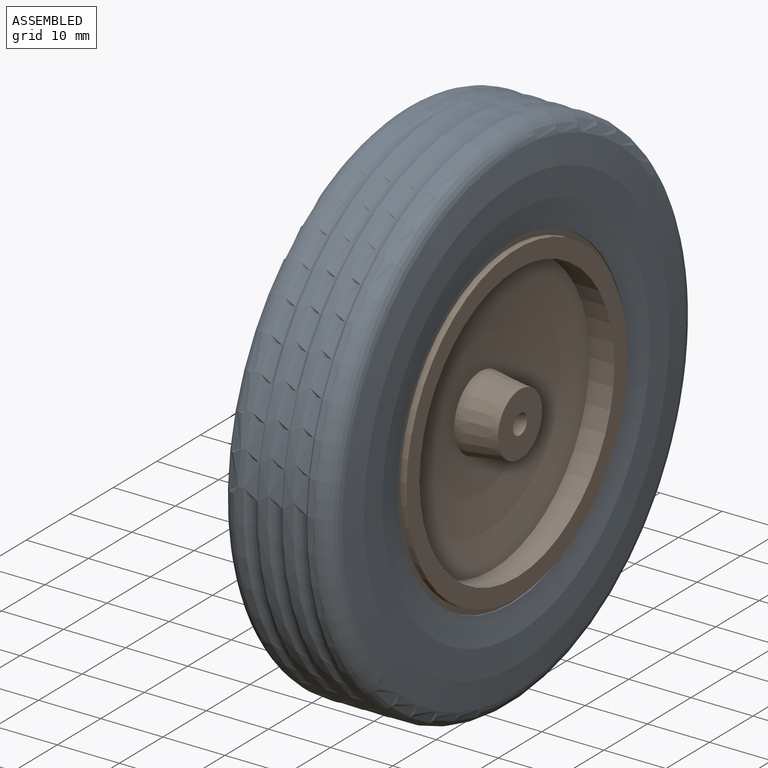
[diagram: assembled view]
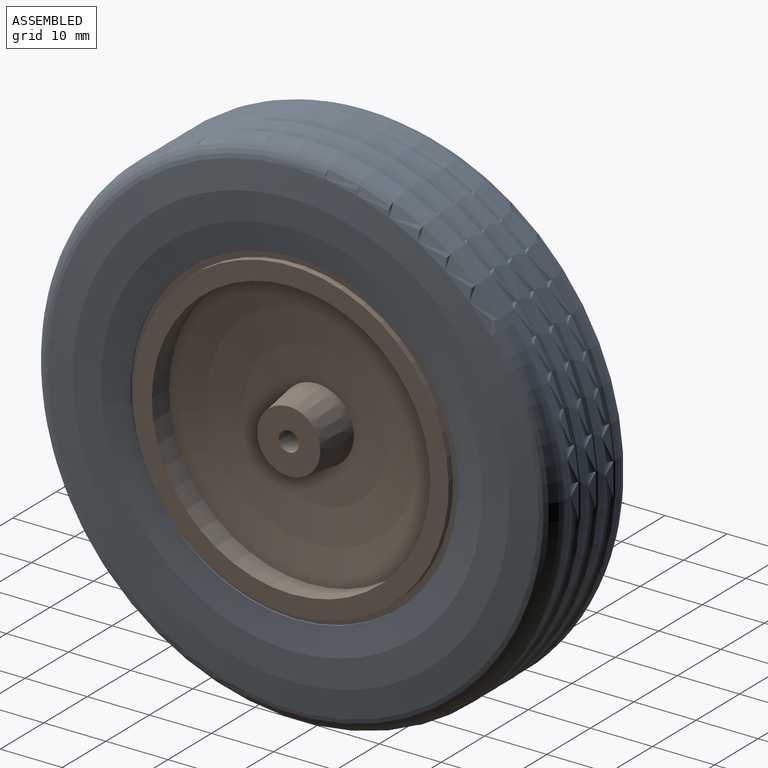
[diagram: assembled view, second angle]
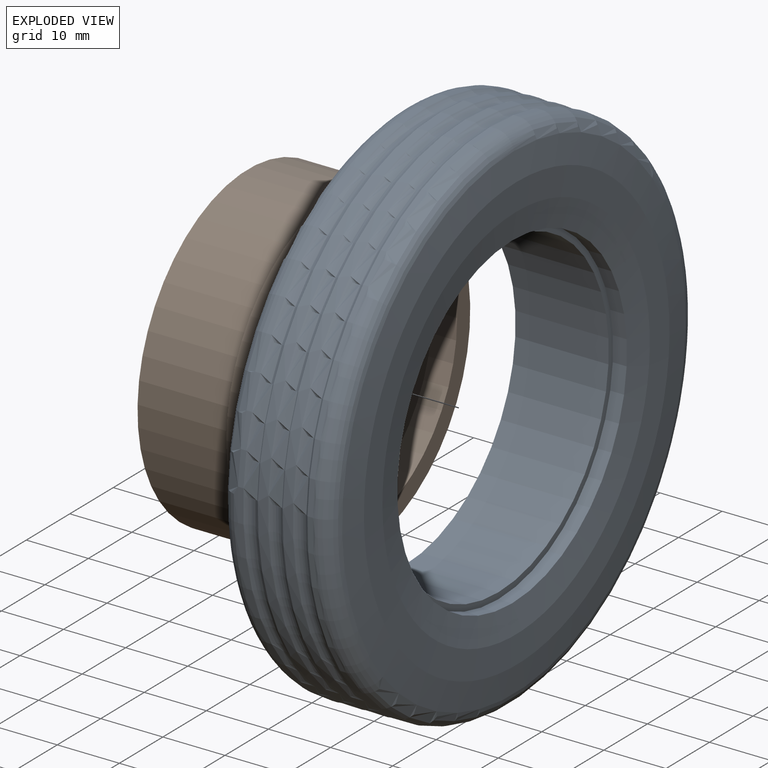
[diagram: exploded view]
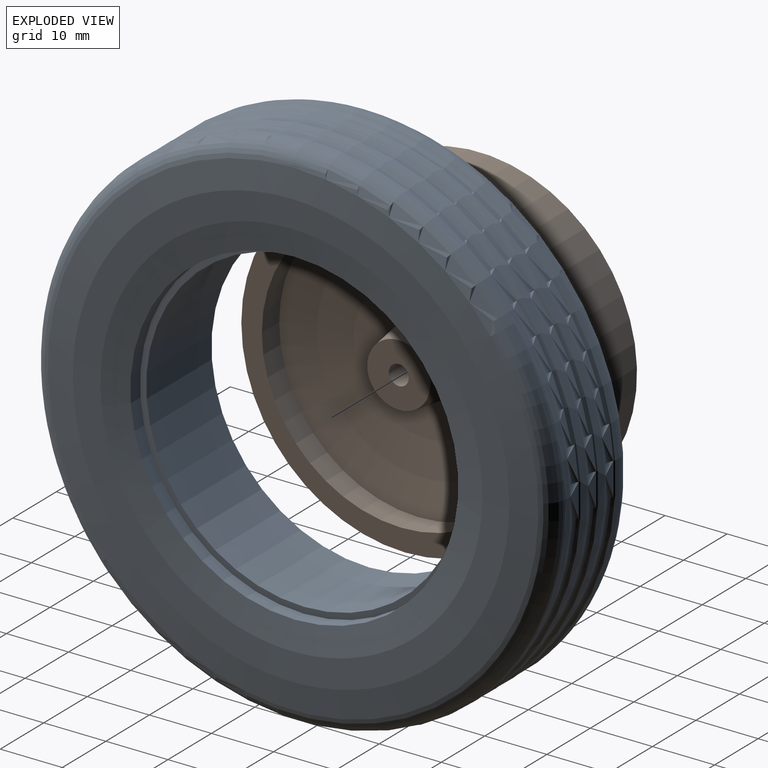
[diagram: exploded view, second angle]
ASSEMBLY  parts=2 mates=2
PART A: 14 faces, bbox 19x91x91 mm
  f0: cylinder r=42mm len=84mm, axis (1,0,0), area 233.7mm2, adj f8,f10
  f1: cylinder r=42mm len=84mm, axis (1,0,0), area 233.7mm2, adj f7,f9
  f2: cylinder r=25.4mm len=50.8mm, axis (1,0,0), area 2393.9mm2, adj f3,f6
  f3: torus R=33.7mm, axis (1,0,0), area 2894.5mm2, adj f2,f7
  f4: torus R=33.7mm, axis (1,0,0), area 2727.6mm2, adj f5,f8
  f5: cylinder r=26.4mm len=52.8mm, axis (-1,0,0), area 369.7mm2, adj f4,f6
  f6: plane 52.8x52.8mm, normal (1,0,0), area 162.7mm2, adj f2,f5
  f7: torus R=39mm, axis (-1,0,0), area 1088mm2, adj f1,f3
  f8: torus R=39mm, axis (-1,0,0), area 1088mm2, adj f0,f4
  f9: torus R=43.3mm, axis (-1,0,0), area 672.7mm2, adj f1,f13
  f10: torus R=43.3mm, axis (-1,0,0), area 672.7mm2, adj f0,f11
  f11: cylinder r=42mm len=84mm, axis (1,0,0), area 437.3mm2, adj f10,f12
  f12: torus R=43.3mm, axis (-1,0,0), area 672.7mm2, adj f11,f13
  f13: cylinder r=42mm len=84mm, axis (1,0,0), area 437.3mm2, adj f9,f12
PART B: 16 faces, bbox 23.5x52.8x52.8 mm
  f0: torus R=1.6mm, axis (1,0,0), area 1477.5mm2, adj f10,f14
  f1: cylinder r=25.4mm len=50.8mm, axis (1,0,0), area 159.6mm2, adj f2,f11
  f2: plane 52.8x52.8mm, normal (1,0,0), area 162.7mm2, adj f1,f3
  f3: cylinder r=26.4mm len=52.8mm, axis (1,0,0), area 331.8mm2, adj f2,f4
  f4: plane 52.8x52.8mm, normal (-1,0,0), area 162.7mm2, adj f3,f5
  f5: cylinder r=25.4mm len=50.8mm, axis (1,0,0), area 2393.9mm2, adj f4,f6
  f6: plane 50.8x50.8mm, normal (-1,0,0), area 450.5mm2, adj f5,f12
  f7: plane 30.8x30.8mm, normal (-1,0,0), area 38.2mm2, adj f12,f13
  f8: plane 16x16mm, normal (-1,0,0), area 193mm2, adj f9,f13
  f9: cylinder r=1.6mm len=18.5mm, axis (1,0,0), area 186mm2, adj f8,f15
  f10: cylinder r=22.4mm len=44.8mm, axis (1,0,0), area 563mm2, adj f0,f11
  f11: plane 50.8x50.8mm, normal (1,0,0), area 450.5mm2, adj f1,f10
  f12: torus R=15.4mm, axis (1,0,0), area 1371.8mm2, adj f6,f7
  f13: torus R=15mm, axis (1,0,0), area 728.4mm2, adj f7,f8
  f14: cone r=6mm half-angle=8deg, axis (-1,0,0), area 225.3mm2, adj f0,f15
  f15: plane 10.17x10.17mm, normal (1,0,0), area 73.2mm2, adj f9,f14
PLACE A t=(-3.5,0,0)mm
PLACE B at identity fixed
MATE planar B.f14 <-> A.f0  axis (-1,0,0) through (3,0,0)mm
MATE cylindrical A.f0 <-> B.f0  axis (1,0,0) through (-4.5,0,0)mm
